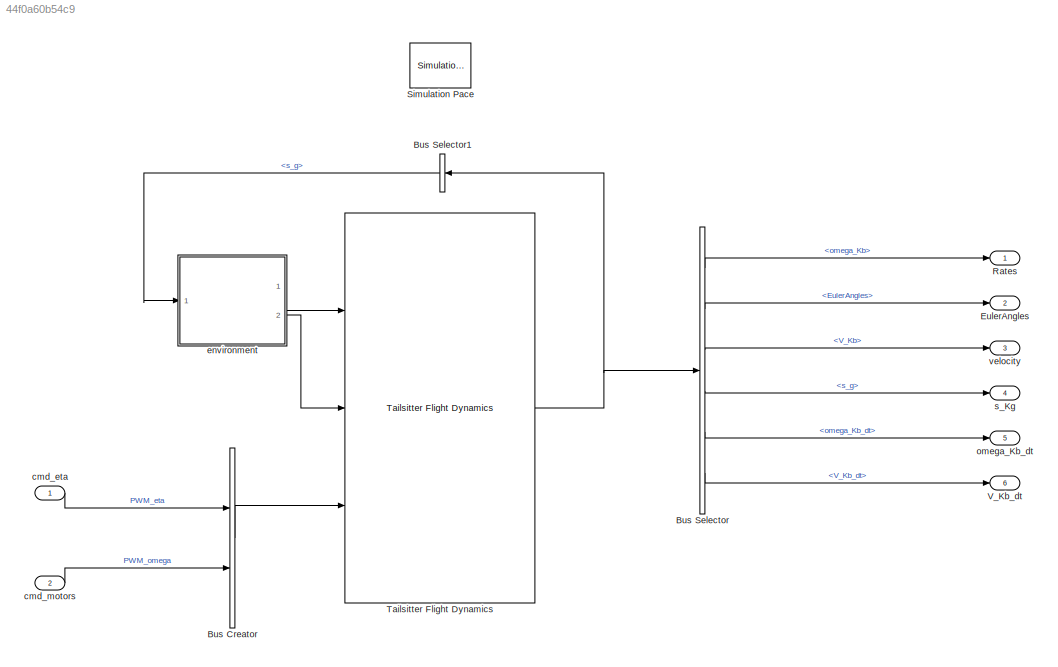
MODEL slx_44f0a60b54c9
KIND model
CONFIG AbsTol = auto
CONFIG EnableMultiTasking = on
CONFIG FixedStep = 0.01
CONFIG MaxStep = auto
CONFIG MinStep = auto
CONFIG RelTol = 1e-4
CONFIG SampleTimeConstraint = Unconstrained
CONFIG Solver = ode23
CONFIG SolverName = ode23
CONFIG StartTime = 0
CONFIG StopTime = 1200
BLOCK [BusCreator] Bus Creator
  DisplayOption = bar
  InheritFromInputs = on
  Inputs = 2
  Ports = [2, 1]
BLOCK [BusSelector] Bus Selector
  OutputAsBus = off
  OutputSignals = rigid_body.omega_Kb,rigid_body.EulerAngles,rigid_body.V_Kb,rigid_body.s_g,rigid_body.omega_Kb_dt,rigid_body.V_Kb_dt
  Ports = [1, 6]
BLOCK [BusSelector] Bus Selector1
  OutputAsBus = off
  OutputSignals = rigid_body.s_g
  Ports = [1, 1]
BLOCK [Outport] EulerAngles
  IconDisplay = Port number
  Port = 2
BLOCK [Outport] Rates
  IconDisplay = Port number
BLOCK [Reference] Simulation Pace  REF=aerolibanimutils/Simulation Pace
  AttributesFormatString = %<SleepMode>\n%<SimulationPace> sec/sec
  Ports = []
  SourceBlock = aerolibanimutils/Simulation Pace
  SourceProductBaseCode = AE
  SourceProductName = Aerospace Blockset
  SourceType = Simulation Pace
BLOCK [Reference] Tailsitter Flight Dynamics  REF=tailsitter_lib/Tailsitter Flight Dynamics  (lib defined in slx_84bbf5c517da)
  Ports = [3, 1]
  SourceBlock = tailsitter_lib/Tailsitter Flight Dynamics
  SourceProductName = LADAC
BLOCK [Outport] V_Kb_dt
  IconDisplay = Port number
  Port = 6
BLOCK [Inport] cmd_eta
  IconDisplay = Port number
  PortDimensions = 2
BLOCK [Inport] cmd_motors
  IconDisplay = Port number
  Port = 2
  PortDimensions = 2
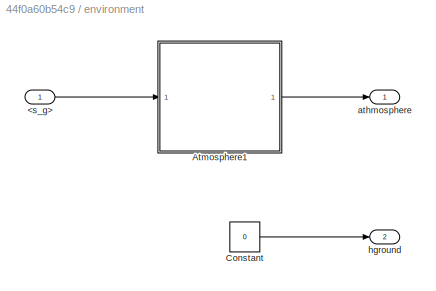
BLOCK [SubSystem] environment
  Ports = [1, 2]
  RequestExecContextInheritance = off
BLOCK [Inport] environment/<s_g>
  IconDisplay = Port number
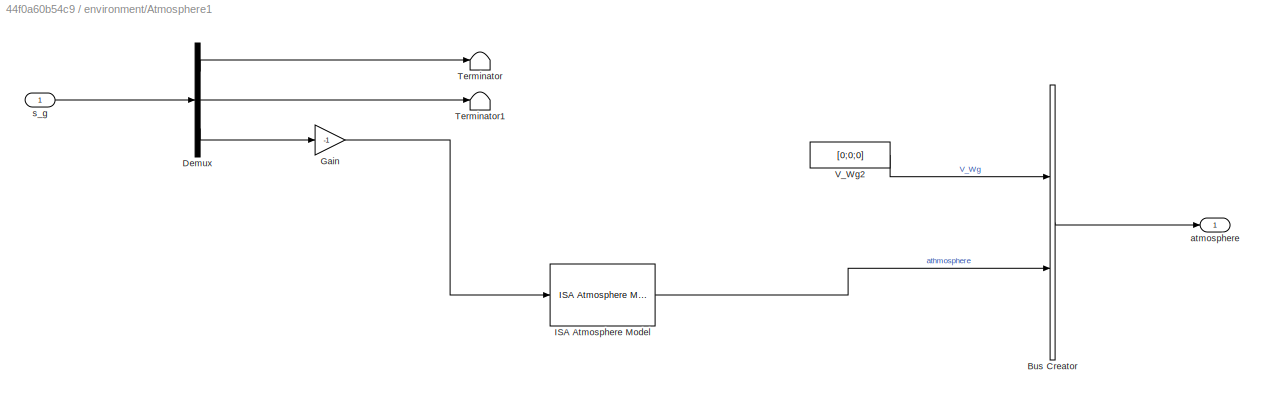
BLOCK [SubSystem] environment/Atmosphere1
  Ports = [1, 1]
  RequestExecContextInheritance = off
BLOCK [BusCreator] environment/Atmosphere1/Bus Creator
  DisplayOption = bar
  InheritFromInputs = on
  Inputs = 2
  Ports = [2, 1]
BLOCK [Demux] environment/Atmosphere1/Demux
  DisplayOption = bar
  Outputs = 3
  Ports = [1, 3]
BLOCK [Gain] environment/Atmosphere1/Gain
  Gain = -1
  OutDataTypeStr = Inherit: Inherit via internal rule
  ParamDataTypeStr = Inherit: Inherit via internal rule
  SaturateOnIntegerOverflow = off
BLOCK [Reference] environment/Atmosphere1/ISA Atmosphere Model  REF=atmosphere_lib/ISA Atmosphere Model  (lib defined in slx_398a0eb2fa35)
  Ports = [1, 1]
  SourceBlock = atmosphere_lib/ISA Atmosphere Model
  SourceProductName = LADAC
  SourceType = SubSystem
BLOCK [Terminator] environment/Atmosphere1/Terminator
BLOCK [Terminator] environment/Atmosphere1/Terminator1
BLOCK [Constant] environment/Atmosphere1/V_Wg2
  Value = [0;0;0]
BLOCK [Outport] environment/Atmosphere1/atmosphere
  IconDisplay = Port number
BLOCK [Inport] environment/Atmosphere1/s_g
  IconDisplay = Port number
BLOCK [Constant] environment/Constant
  Value = 0
BLOCK [Outport] environment/athmosphere
  IconDisplay = Port number
BLOCK [Outport] environment/hground
  IconDisplay = Port number
  Port = 2
BLOCK [Outport] omega_Kb_dt
  IconDisplay = Port number
  Port = 5
BLOCK [Outport] s_Kg
  IconDisplay = Port number
  Port = 4
BLOCK [Outport] velocity
  IconDisplay = Port number
  Port = 3
LINE Bus Creator:1 -> Tailsitter Flight Dynamics:3
LINE Bus Selector1:1 -> environment:1
LINE Bus Selector:1 -> Rates:1
LINE Bus Selector:2 -> EulerAngles:1
LINE Bus Selector:3 -> velocity:1
LINE Bus Selector:4 -> s_Kg:1
LINE Bus Selector:5 -> omega_Kb_dt:1
LINE Bus Selector:6 -> V_Kb_dt:1
NET Tailsitter Flight Dynamics:1 -> Bus Selector1:1, Bus Selector:1
LINE cmd_eta:1 -> Bus Creator:1
LINE cmd_motors:1 -> Bus Creator:2
LINE environment/<s_g>:1 -> environment/Atmosphere1:1
LINE environment/Atmosphere1/Bus Creator:1 -> environment/Atmosphere1/atmosphere:1
LINE environment/Atmosphere1/Demux:1 -> environment/Atmosphere1/Terminator:1
LINE environment/Atmosphere1/Demux:2 -> environment/Atmosphere1/Terminator1:1
LINE environment/Atmosphere1/Demux:3 -> environment/Atmosphere1/Gain:1
LINE environment/Atmosphere1/Gain:1 -> environment/Atmosphere1/ISA Atmosphere Model:1
LINE environment/Atmosphere1/ISA Atmosphere Model:1 -> environment/Atmosphere1/Bus Creator:2
LINE environment/Atmosphere1/V_Wg2:1 -> environment/Atmosphere1/Bus Creator:1
LINE environment/Atmosphere1/s_g:1 -> environment/Atmosphere1/Demux:1
LINE environment/Atmosphere1:1 -> environment/athmosphere:1
LINE environment/Constant:1 -> environment/hground:1
LINE environment:1 -> Tailsitter Flight Dynamics:1
LINE environment:2 -> Tailsitter Flight Dynamics:2
note: NET lines group one-source signal fan-out (src -> all destinations, sorted); 1:1 wires keep LINE
